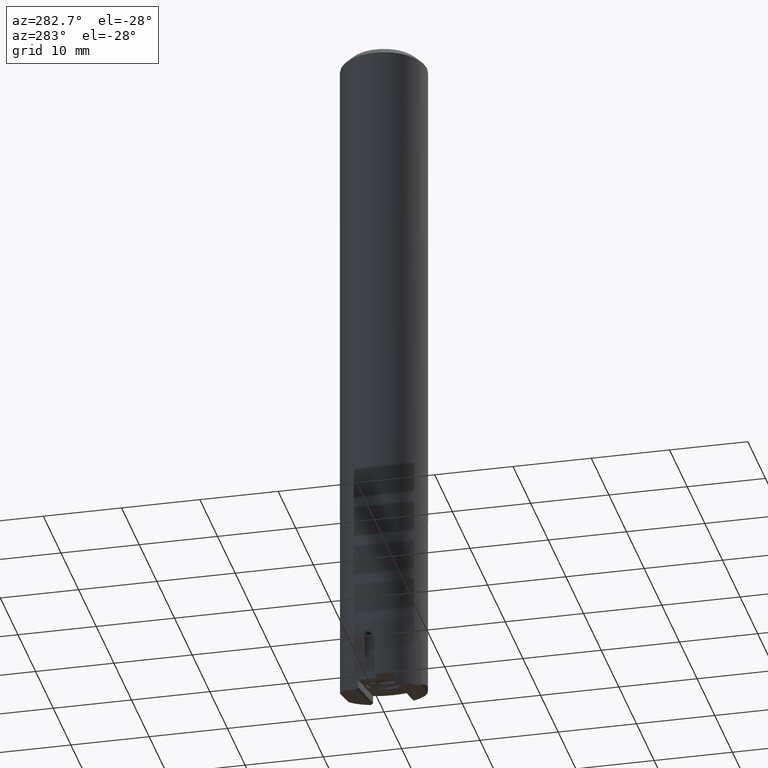
[diagram: clean part render]
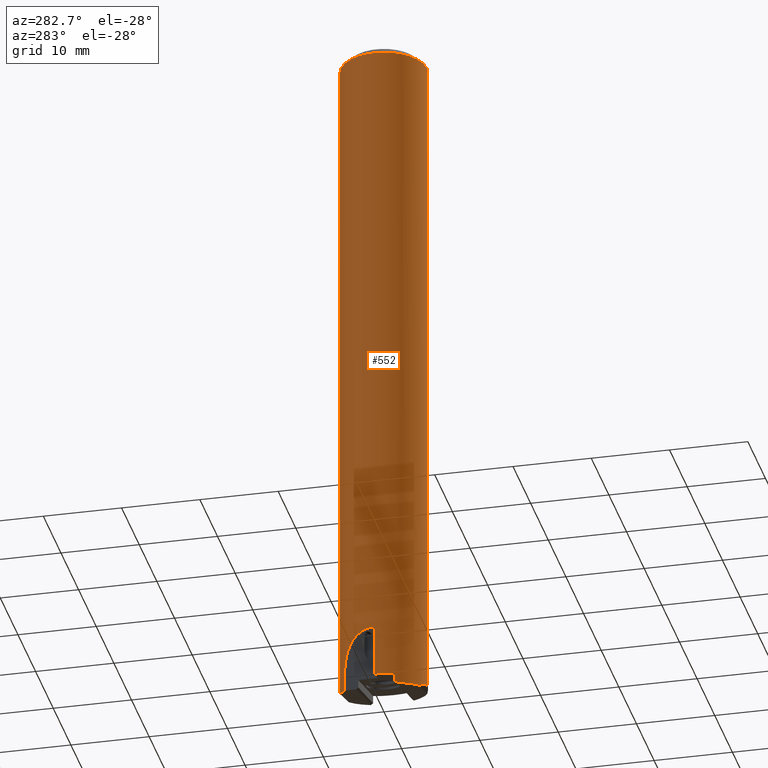
[diagram: same view with one face highlighted and labeled with its STEP entity id]
A machine part, auxiliary view. The second image highlights one B-rep face of the part: STEP entity #552.
In plain terms, the highlighted cylindrical surface (partial cylindrical patch) has radius 5.5 mm, axis along (-0, -0, 1).
Its self-contained STEP definition (entity closure, byte-faithful):
#320=VERTEX_POINT('NONE',#920);
#334=EDGE_CURVE('NONE',#342,#486,#936,.T.);
#342=VERTEX_POINT('NONE',#945);
#380=EDGE_CURVE('NONE',#342,#792,#986,.T.);
#402=VERTEX_POINT('NONE',#1008);
#408=VERTEX_POINT('NONE',#1014);
#422=VERTEX_POINT('NONE',#1028);
#442=EDGE_CURVE('NONE',#500,#692,#1049,.T.);
#446=EDGE_CURVE('NONE',#858,#782,#1053,.T.);
#486=VERTEX_POINT('NONE',#1094);
#500=VERTEX_POINT('NONE',#1110);
#502=EDGE_CURVE('NONE',#486,#500,#1112,.T.);
#504=VERTEX_POINT('NONE',#1114);
#520=EDGE_CURVE('NONE',#792,#602,#1131,.T.);
#552=ADVANCED_FACE('NONE',(#1171),#1172,.T.);
#564=EDGE_CURVE('NONE',#602,#858,#1185,.T.);
#602=VERTEX_POINT('NONE',#1226);
#676=EDGE_CURVE('NONE',#782,#402,#1310,.T.);
#692=VERTEX_POINT('NONE',#1327);
#696=EDGE_CURVE('NONE',#504,#422,#1331,.T.);
#728=EDGE_CURVE('NONE',#402,#504,#1368,.T.);
#736=EDGE_CURVE('NONE',#320,#408,#1376,.T.);
#782=VERTEX_POINT('NONE',#1429);
#792=VERTEX_POINT('NONE',#1441);
#804=EDGE_CURVE('NONE',#320,#422,#1454,.T.);
#858=VERTEX_POINT('NONE',#1515);
#868=EDGE_CURVE('NONE',#408,#692,#1525,.T.);
#920=CARTESIAN_POINT('',(0.0,5.5,-11.1133891696876));
#936=LINE('',#1600,#1601);
#945=CARTESIAN_POINT('',(-5.5,0.0,-11.7117329633126));
#986=(B_SPLINE_CURVE(3,(#1736,#1737,#1738,#1739),.UNSPECIFIED.,.F.,.F.)B_SPLINE_CURVE_WITH_KNOTS((4,4),(3.14159265358979,3.61345449086943),.UNSPECIFIED.)RATIONAL_B_SPLINE_CURVE((1.0,0.981531441395684,0.981531441395684,1.0))BOUNDED_CURVE()REPRESENTATION_ITEM('')GEOMETRIC_REPRESENTATION_ITEM()CURVE());
#1008=CARTESIAN_POINT('',(-6.73555739531044E-016,-5.5,-11.1133891696876));
#1014=CARTESIAN_POINT('',(-2.29128784747792,5.0,-12.199978207313));
#1028=CARTESIAN_POINT('',(0.0,5.5,76.0));
#1049=LINE('',#1879,#1880);
#1053=(B_SPLINE_CURVE(3,(#1888,#1889,#1890,#1891),.UNSPECIFIED.,.F.,.F.)B_SPLINE_CURVE_WITH_KNOTS((4,4),(3.66519142918809,4.28268931423327),.UNSPECIFIED.)RATIONAL_B_SPLINE_CURVE((1.0,0.968476313602969,0.968476313602969,1.0))BOUNDED_CURVE()REPRESENTATION_ITEM('')GEOMETRIC_REPRESENTATION_ITEM()CURVE());
#1094=CARTESIAN_POINT('',(-5.5,0.0,-5.00849737787082));
#1110=CARTESIAN_POINT('',(-3.5,4.24264068711928,-10.3));
#1112=B_SPLINE_CURVE_WITH_KNOTS('',3,(#2059,#2060,#2061,#2062,#2063,#2064,#2065,#2066,#2067,#2068,#2069,#2070,#2071,#2072,#2073,#2074,#2075,#2076,#2077,#2078,#2079,#2080),.UNSPECIFIED.,.F.,.F.,(4,2,2,2,2,2,2,2,2,2,4),(0.0,0.000994575399473276,0.00149186309920991,0.00198915079894655,0.00298372619841983,0.00348101389815647,0.0039783015978931,0.00497287699736638,0.00596745239683966,0.00696202779631294,0.00795660319578622),.UNSPECIFIED.);
#1114=CARTESIAN_POINT('',(-6.73555739531044E-016,-5.5,76.0));
#1131=LINE('',#2116,#2117);
#1171=FACE_OUTER_BOUND('',#2180,.T.);
#1172=CYLINDRICAL_SURFACE('',#2181,5.5);
#1185=(B_SPLINE_CURVE(3,(#2206,#2207,#2208,#2209),.UNSPECIFIED.,.F.,.F.)B_SPLINE_CURVE_WITH_KNOTS((4,4),(2.28001957411552,2.33175651243417),.UNSPECIFIED.)RATIONAL_B_SPLINE_CURVE((1.0,0.999776953206362,0.999776953206362,1.0))BOUNDED_CURVE()REPRESENTATION_ITEM('')GEOMETRIC_REPRESENTATION_ITEM()CURVE());
#1226=CARTESIAN_POINT('',(-4.89897948556636,-2.5,-12.592495348131));
#1310=(B_SPLINE_CURVE(3,(#2442,#2443,#2444,#2445),.UNSPECIFIED.,.F.,.F.)B_SPLINE_CURVE_WITH_KNOTS((4,4),(5.61612423098718,6.04582389713861),.UNSPECIFIED.)RATIONAL_B_SPLINE_CURVE((1.0,0.984672280612263,0.984672280612263,1.0))BOUNDED_CURVE()REPRESENTATION_ITEM('')GEOMETRIC_REPRESENTATION_ITEM()CURVE());
#1327=CARTESIAN_POINT('',(-3.5,4.24264068711928,-12.5013439943136));
#1331=CIRCLE('',#2482,5.5);
#1368=LINE('',#2530,#2531);
#1376=(B_SPLINE_CURVE(3,(#2543,#2544,#2545,#2546),.UNSPECIFIED.,.F.,.F.)B_SPLINE_CURVE_WITH_KNOTS((4,4),(0.237361410040979,0.667061076192402),.UNSPECIFIED.)RATIONAL_B_SPLINE_CURVE((1.0,0.984672280612263,0.984672280612263,1.0))BOUNDED_CURVE()REPRESENTATION_ITEM('')GEOMETRIC_REPRESENTATION_ITEM()CURVE());
#1429=CARTESIAN_POINT('',(-2.29128784747792,-5.0,-12.199978207313));
#1441=CARTESIAN_POINT('',(-4.89897948556636,-2.5,-11.5618817187811));
#1454=LINE('',#2696,#2697);
#1515=CARTESIAN_POINT('',(-4.76313972081442,-2.75,-12.8162800982162));
#1525=(B_SPLINE_CURVE(3,(#2850,#2851,#2852,#2853),.UNSPECIFIED.,.F.,.F.)B_SPLINE_CURVE_WITH_KNOTS((4,4),(2.00049599294632,2.2605713275804),.UNSPECIFIED.)RATIONAL_B_SPLINE_CURVE((1.0,0.994371340027342,0.994371340027342,1.0))BOUNDED_CURVE()REPRESENTATION_ITEM('')GEOMETRIC_REPRESENTATION_ITEM()CURVE());
#1600=CARTESIAN_POINT('',(-5.5,0.0,0.0));
#1601=VECTOR('',#2932,1000.0);
#1736=CARTESIAN_POINT('',(-5.5,0.0,-11.7117329633126));
#1737=CARTESIAN_POINT('',(-5.5,-0.873203604745345,-11.7117329633126));
#1738=CARTESIAN_POINT('',(-5.29589021499606,-1.72221699156908,-11.6608426782568));
#1739=CARTESIAN_POINT('',(-4.89897948556636,-2.5,-11.5618817187811));
#1879=CARTESIAN_POINT('',(-3.5,4.24264068711929,2.66295270435036E-016));
#1880=VECTOR('',#2997,1000.0);
#1888=CARTESIAN_POINT('',(-4.76313972081442,-2.75,-12.8162800982162));
#1889=CARTESIAN_POINT('',(-4.1879171320008,-3.74631474948647,-12.672860998957));
#1890=CARTESIAN_POINT('',(-3.33714709986631,-4.52072708096603,-12.4607402059661));
#1891=CARTESIAN_POINT('',(-2.29128784747792,-5.0,-12.199978207313));
#2059=CARTESIAN_POINT('',(-5.5,0.0,-5.00849737787082));
#2060=CARTESIAN_POINT('',(-5.5,0.336610566695048,-5.00849737787082));
#2061=CARTESIAN_POINT('',(-5.46935822467223,0.665152462375926,-5.04267366856531));
#2062=CARTESIAN_POINT('',(-5.38168820134961,1.14630227272434,-5.14555620567294));
#2063=CARTESIAN_POINT('',(-5.3451164275767,1.30571919056325,-5.1890475286642));
#2064=CARTESIAN_POINT('',(-5.26095896207198,1.6116708809028,-5.2921268105722));
#2065=CARTESIAN_POINT('',(-5.21330996805988,1.75906545773157,-5.35177966372402));
#2066=CARTESIAN_POINT('',(-5.05634717990314,2.18517771060236,-5.55565994576917));
#2067=CARTESIAN_POINT('',(-4.93124833545708,2.4502558804247,-5.72747368402844));
#2068=CARTESIAN_POINT('',(-4.73633708532981,2.79908056699079,-6.0260103168249));
#2069=CARTESIAN_POINT('',(-4.66995426429972,2.90799028473004,-6.13252685061967));
#2070=CARTESIAN_POINT('',(-4.53643243232826,3.11217947966625,-6.35968479268042));
#2071=CARTESIAN_POINT('',(-4.46893822330074,3.20789549518714,-6.48104792853292));
#2072=CARTESIAN_POINT('',(-4.27200139942231,3.47102484148633,-6.85951533098269));
#2073=CARTESIAN_POINT('',(-4.14757406579409,3.61591361929791,-7.13158101166252));
#2074=CARTESIAN_POINT('',(-3.92345340585648,3.85794184838821,-7.71291907540305));
#2075=CARTESIAN_POINT('',(-3.82513609469386,3.9534981581014,-8.01937061843177));
#2076=CARTESIAN_POINT('',(-3.66595183351368,4.10153763647228,-8.6469737853816));
#2077=CARTESIAN_POINT('',(-3.60395995723252,4.15504954761277,-8.97217031070639));
#2078=CARTESIAN_POINT('',(-3.52100133940069,4.22557850292609,-9.63204759532482));
#2079=CARTESIAN_POINT('',(-3.5,4.24264068711929,-9.9646889581483));
#2080=CARTESIAN_POINT('',(-3.5,4.24264068711928,-10.3));
#2116=CARTESIAN_POINT('',(-4.89897948556636,-2.5,0.0));
#2117=VECTOR('',#3063,1000.0);
#2180=EDGE_LOOP('',(#3131,#3132,#3133,#3134,#3135,#3136,#3137,#3138,#3139,#3140,#3141,#3142,#3143));
#2181=AXIS2_PLACEMENT_3D('',#3144,#3145,#3146);
#2206=CARTESIAN_POINT('',(-4.89897948556636,-2.5,-12.592495348131));
#2207=CARTESIAN_POINT('',(-4.85586056110281,-2.58449549055465,-12.668826796994));
#2208=CARTESIAN_POINT('',(-4.81057053772432,-2.66784741526754,-12.743438355558));
#2209=CARTESIAN_POINT('',(-4.76313972081442,-2.75,-12.8162800982162));
#2442=CARTESIAN_POINT('',(-2.29128784747792,-5.0,-12.199978207313));
#2443=CARTESIAN_POINT('',(-1.56955629423788,-5.33073894741605,-11.679166253591));
#2444=CARTESIAN_POINT('',(-0.793904708564046,-5.5,-11.3113318451216));
#2445=CARTESIAN_POINT('',(-6.73555739531044E-016,-5.5,-11.1133891696876));
#2482=AXIS2_PLACEMENT_3D('',#3310,#3311,#3312);
#2530=CARTESIAN_POINT('',(-6.73555739531044E-016,-5.5,0.0));
#2531=VECTOR('',#3355,1000.0);
#2543=CARTESIAN_POINT('',(0.0,5.5,-11.1133891696876));
#2544=CARTESIAN_POINT('',(-0.793904708564043,5.5,-11.3113318451216));
#2545=CARTESIAN_POINT('',(-1.56955629423788,5.33073894741606,-11.679166253591));
#2546=CARTESIAN_POINT('',(-2.29128784747792,5.0,-12.199978207313));
#2696=CARTESIAN_POINT('',(0.0,5.5,0.0));
#2697=VECTOR('',#3469,1000.0);
#2850=CARTESIAN_POINT('',(-2.29128784747792,5.0,-12.199978207313));
#2851=CARTESIAN_POINT('',(-2.72597284822211,4.80080230806278,-12.3083573504145));
#2852=CARTESIAN_POINT('',(-3.13115754595245,4.54692018764022,-12.4093812418822));
#2853=CARTESIAN_POINT('',(-3.5,4.24264068711928,-12.5013439943136));
#2932=DIRECTION('',(0.0,-0.0,1.0));
#2997=DIRECTION('',(0.0,0.0,-1.0));
#3063=DIRECTION('',(0.0,0.0,-1.0));
#3131=ORIENTED_EDGE('',*,*,#676,.T.);
#3132=ORIENTED_EDGE('',*,*,#728,.T.);
#3133=ORIENTED_EDGE('',*,*,#696,.T.);
#3134=ORIENTED_EDGE('',*,*,#804,.F.);
#3135=ORIENTED_EDGE('',*,*,#736,.T.);
#3136=ORIENTED_EDGE('',*,*,#868,.T.);
#3137=ORIENTED_EDGE('',*,*,#442,.F.);
#3138=ORIENTED_EDGE('',*,*,#502,.F.);
#3139=ORIENTED_EDGE('',*,*,#334,.F.);
#3140=ORIENTED_EDGE('',*,*,#380,.T.);
#3141=ORIENTED_EDGE('',*,*,#520,.T.);
#3142=ORIENTED_EDGE('',*,*,#564,.T.);
#3143=ORIENTED_EDGE('',*,*,#446,.T.);
#3144=CARTESIAN_POINT('',(0.0,0.0,0.0));
#3145=DIRECTION('',(-0.0,-0.0,1.0));
#3146=DIRECTION('',(0.0,1.0,0.0));
#3310=CARTESIAN_POINT('',(0.0,0.0,76.0));
#3311=DIRECTION('',(0.0,0.0,-1.0));
#3312=DIRECTION('',(0.0,1.0,0.0));
#3355=DIRECTION('',(0.0,-0.0,1.0));
#3469=DIRECTION('',(0.0,-0.0,1.0));